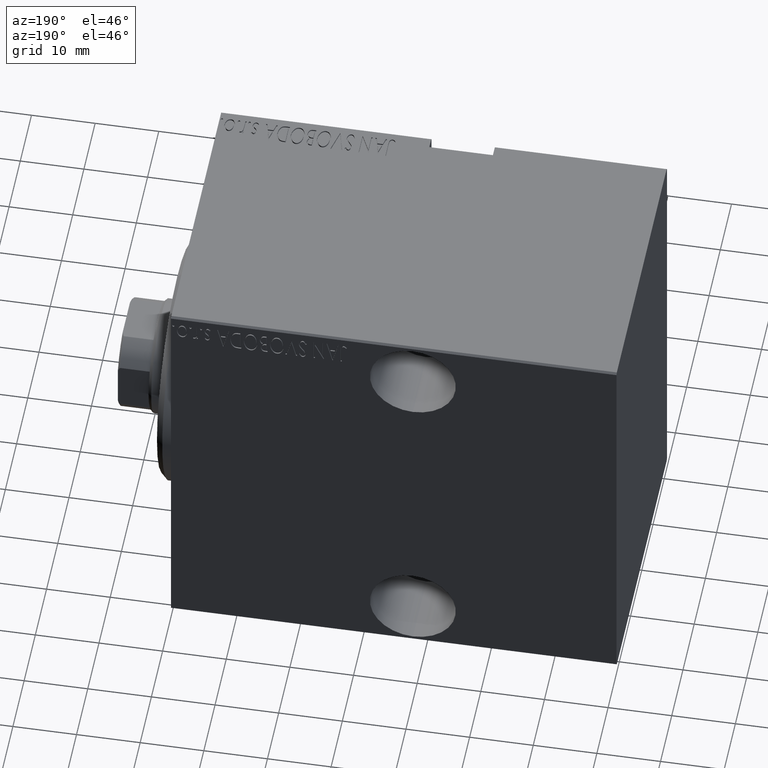
[diagram: clean part render]
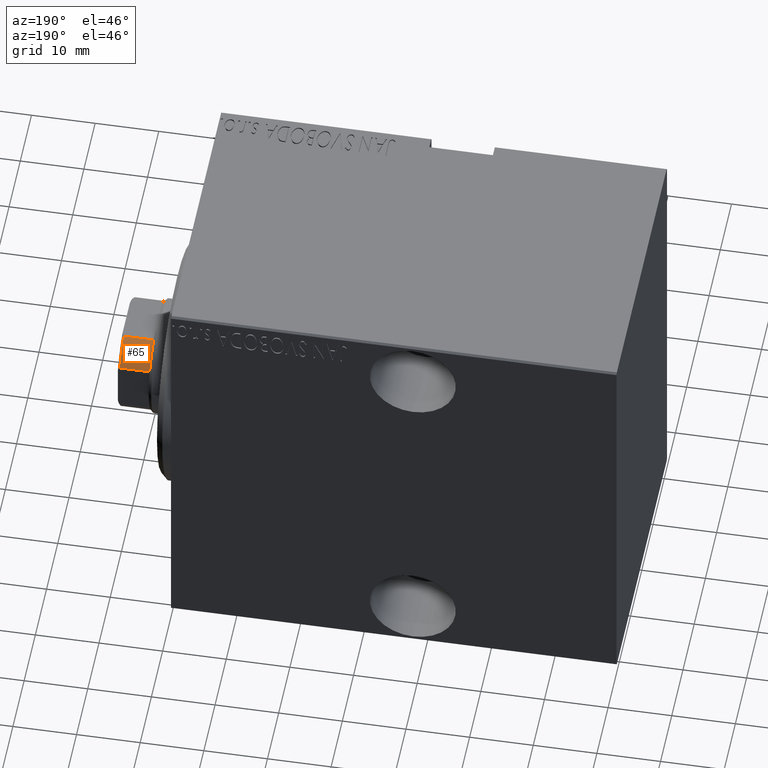
[diagram: same view with one face highlighted and labeled with its STEP entity id]
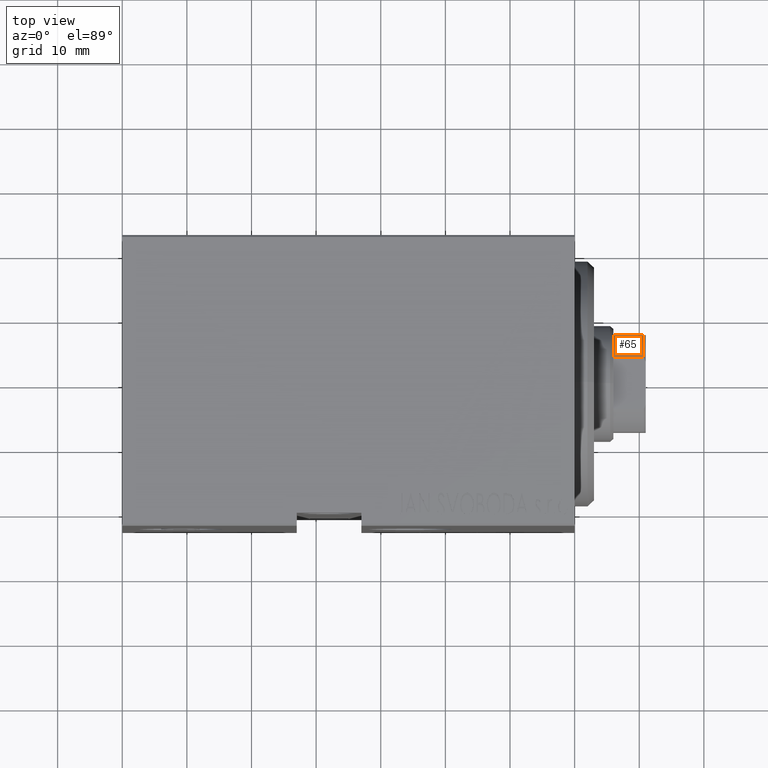
[diagram: same view with one face highlighted and labeled with its STEP entity id]
A machine part, auxiliary view. The second image highlights one B-rep face of the part: STEP entity #65.
A second angle (top view) of the same face is appended — the face is thin or edge-on in the first view.
In plain terms, the highlighted cylindrical surface (partial cylindrical patch) has radius 8.5 mm, axis along (1, 0, -0).
Its self-contained STEP definition (entity closure, byte-faithful):
#65 = ADVANCED_FACE ( 'NONE', ( #12237 ), #25387, .T. ) ;
#725 = DIRECTION ( 'NONE',  ( 0.000000000000000000, 0.000000000000000000, 1.000000000000000000 ) ) ;
#2157 = DIRECTION ( 'NONE',  ( 1.000000000000000000, 0.000000000000000000, 0.000000000000000000 ) ) ;
#2196 = CARTESIAN_POINT ( 'NONE',  ( -7.499999999999996447, 4.000000000000008882, -0.001000000000001000089 ) ) ;
#3537 = ORIENTED_EDGE ( 'NONE', *, *, #17802, .T. ) ;
#3884 = CARTESIAN_POINT ( 'NONE',  ( -7.499999999999996447, 4.000000000000008882, 74.70000000000001705 ) ) ;
#4797 = EDGE_LOOP ( 'NONE', ( #37181, #3537, #25314, #37008 ) ) ;
#5494 = VERTEX_POINT ( 'NONE', #22122 ) ;
#7289 = VERTEX_POINT ( 'NONE', #36693 ) ;
#7756 = VERTEX_POINT ( 'NONE', #8400 ) ;
#7788 = CIRCLE ( 'NONE', #31864, 8.500000000000007105 ) ;
#8400 = CARTESIAN_POINT ( 'NONE',  ( -4.000000000000000000, 7.500000000000000888, 74.70000000000001705 ) ) ;
#8588 = DIRECTION ( 'NONE',  ( -0.000000000000000000, -0.000000000000000000, 1.000000000000000000 ) ) ;
#8812 = AXIS2_PLACEMENT_3D ( 'NONE', #14736, #31318, #41024 ) ;
#10213 = EDGE_CURVE ( 'NONE', #5494, #35863, #31686, .T. ) ;
#11123 = CARTESIAN_POINT ( 'NONE',  ( -4.000000000000000000, 7.500000000000000888, -0.001000000000001000089 ) ) ;
#12193 = VECTOR ( 'NONE', #24269, 1000.000000000000000 ) ;
#12237 = FACE_OUTER_BOUND ( 'NONE', #4797, .T. ) ;
#14736 = CARTESIAN_POINT ( 'NONE',  ( 0.000000000000000000, 0.000000000000000000, 74.70000000000001705 ) ) ;
#15678 = EDGE_CURVE ( 'NONE', #7289, #7756, #40642, .T. ) ;
#17802 = EDGE_CURVE ( 'NONE', #35863, #7756, #37728, .T. ) ;
#21726 = CARTESIAN_POINT ( 'NONE',  ( 0.000000000000000000, 0.000000000000000000, -0.001000000000001000089 ) ) ;
#22122 = CARTESIAN_POINT ( 'NONE',  ( -7.499999999999996447, 4.000000000000011546, 70.00000000000000000 ) ) ;
#24269 = DIRECTION ( 'NONE',  ( -0.000000000000000000, -0.000000000000000000, 1.000000000000000000 ) ) ;
#25236 = DIRECTION ( 'NONE',  ( -0.000000000000000000, -0.000000000000000000, 1.000000000000000000 ) ) ;
#25314 = ORIENTED_EDGE ( 'NONE', *, *, #15678, .F. ) ;
#25387 = CYLINDRICAL_SURFACE ( 'NONE', #29767, 8.500000000000000000 ) ;
#25811 = DIRECTION ( 'NONE',  ( 1.000000000000000000, 0.000000000000000000, 0.000000000000000000 ) ) ;
#29767 = AXIS2_PLACEMENT_3D ( 'NONE', #21726, #8588, #25811 ) ;
#31318 = DIRECTION ( 'NONE',  ( -0.000000000000000000, -0.000000000000000000, -1.000000000000000000 ) ) ;
#31686 = LINE ( 'NONE', #2196, #39658 ) ;
#31864 = AXIS2_PLACEMENT_3D ( 'NONE', #36901, #725, #2157 ) ;
#35863 = VERTEX_POINT ( 'NONE', #3884 ) ;
#36693 = CARTESIAN_POINT ( 'NONE',  ( -3.999999999999997335, 7.500000000000000888, 70.00000000000001421 ) ) ;
#36784 = EDGE_CURVE ( 'NONE', #7289, #5494, #7788, .T. ) ;
#36901 = CARTESIAN_POINT ( 'NONE',  ( 0.000000000000000000, 0.000000000000000000, 70.00000000000000000 ) ) ;
#37008 = ORIENTED_EDGE ( 'NONE', *, *, #36784, .T. ) ;
#37181 = ORIENTED_EDGE ( 'NONE', *, *, #10213, .T. ) ;
#37728 = CIRCLE ( 'NONE', #8812, 8.500000000000000000 ) ;
#39658 = VECTOR ( 'NONE', #25236, 1000.000000000000000 ) ;
#40642 = LINE ( 'NONE', #11123, #12193 ) ;
#41024 = DIRECTION ( 'NONE',  ( 1.000000000000000000, 0.000000000000000000, 0.000000000000000000 ) ) ;